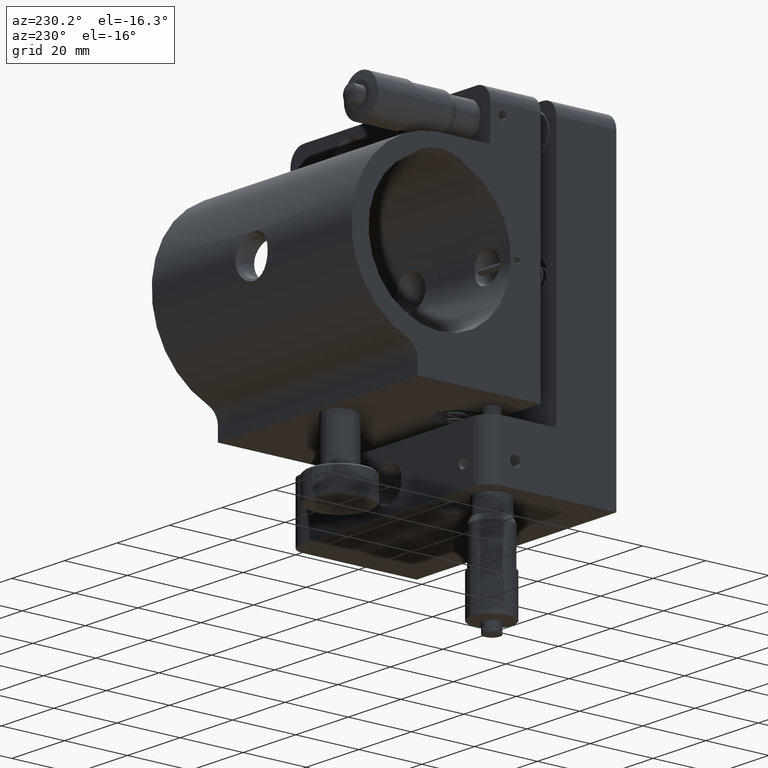
[diagram: clean part render]
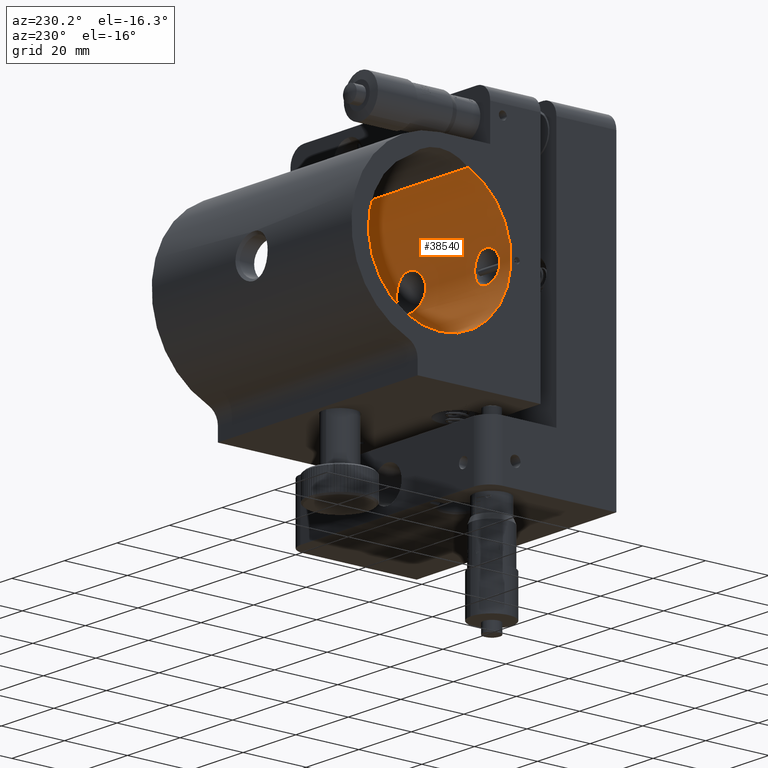
[diagram: same view with one face highlighted and labeled with its STEP entity id]
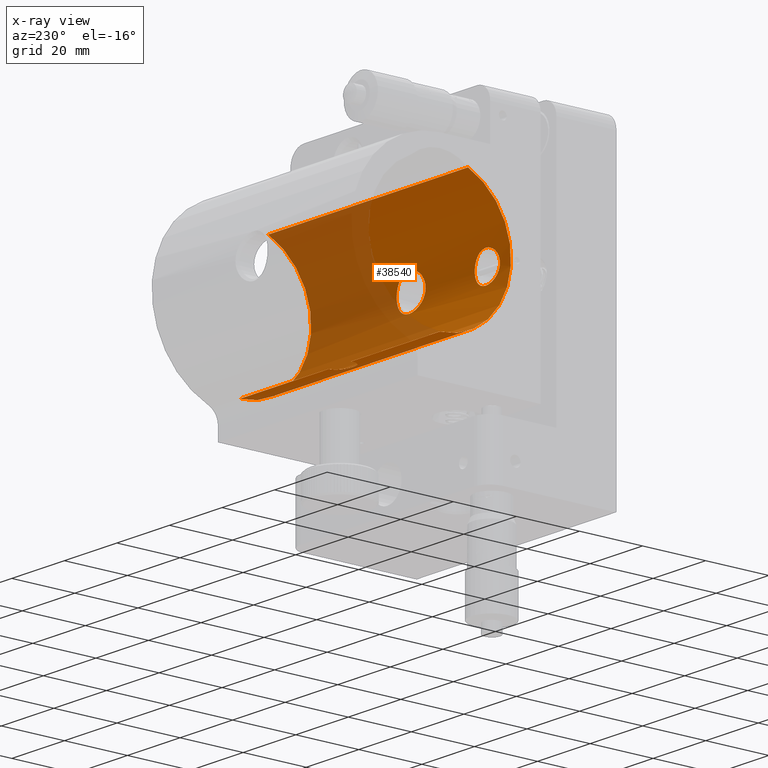
[diagram: x-ray of the same camera — body ghosted, the highlighted face saturated]
A machine part, auxiliary view. The second image highlights one B-rep face of the part: STEP entity #38540.
The next image is the same camera in x-ray: the body ghosted, the highlighted face saturated — about 45% of this face is hidden behind the body in this view.
In plain terms, the highlighted cylindrical surface (partial cylindrical patch) has radius 22.6 mm, axis along (1, -0, -0).
Its self-contained STEP definition (entity closure, byte-faithful):
#232 = CARTESIAN_POINT ( 'NONE',  ( -28.99999999999999300, 33.91561637717708100, 4.799999999999896800 ) ) ;
#279 = CARTESIAN_POINT ( 'NONE',  ( -5.322882374850980400, 33.44255374797697300, 1.430629238801954100 ) ) ;
#431 = EDGE_CURVE ( 'NONE', #86210, #9210, #53768, .T. ) ;
#865 = CARTESIAN_POINT ( 'NONE',  ( -0.1798737963193269800, 34.07946168544193500, 5.499999999999966200 ) ) ;
#1552 = CARTESIAN_POINT ( 'NONE',  ( -31.92919109519753500, 33.72369511221305100, 3.815414028245748900 ) ) ;
#1587 = CARTESIAN_POINT ( 'NONE',  ( -27.44411171378724400, 33.86274486963220900, -4.551586978275326000 ) ) ;
#1838 = CARTESIAN_POINT ( 'NONE',  ( -33.31321153355015200, 33.49867152778696100, 2.129684487732626000 ) ) ;
#2163 = CARTESIAN_POINT ( 'NONE',  ( -4.249999999999982200, 55.99999999999979400, -22.60000000000009700 ) ) ;
#2465 = DIRECTION ( 'NONE',  ( 1.000000000000000000, -0.0000000000000000000, -0.0000000000000000000 ) ) ;
#2532 = CARTESIAN_POINT ( 'NONE',  ( 1.104592796562014400, 51.88647318228841200, -22.22255613242803200 ) ) ;
#2593 = CARTESIAN_POINT ( 'NONE',  ( -4.222098093493668700, 55.43989091721324800, -22.59470610372353100 ) ) ;
#2595 = EDGE_CURVE ( 'NONE', #72231, #18963, #22529, .T. ) ;
#2642 = CARTESIAN_POINT ( 'NONE',  ( 5.324354730952443900, 33.44220509470590500, -1.425080019547763300 ) ) ;
#2877 = CARTESIAN_POINT ( 'NONE',  ( -1.884278467364153100, 52.18040221675740000, -22.27515127614113100 ) ) ;
#3531 = DIRECTION ( 'NONE',  ( 0.0000000000000000000, 0.0000000000000000000, -1.000000000000000000 ) ) ;
#3589 = VERTEX_POINT ( 'NONE', #55548 ) ;
#3724 = CARTESIAN_POINT ( 'NONE',  ( 4.250000000000007100, 55.71927081535427100, -22.60000000000009700 ) ) ;
#3835 = CARTESIAN_POINT ( 'NONE',  ( 0.3596502502633381300, 34.07946168544194200, 5.499999999999969800 ) ) ;
#3957 = FACE_BOUND ( 'NONE', #74095, .T. ) ;
#4441 = CARTESIAN_POINT ( 'NONE',  ( 1.433238186481377900, 34.03550947224599100, -5.322263253770183900 ) ) ;
#4722 = AXIS2_PLACEMENT_3D ( 'NONE', #37195, #2465, #15215 ) ;
#6087 = CARTESIAN_POINT ( 'NONE',  ( -0.7233781988226070100, 34.07035398560775300, -5.464052063005926400 ) ) ;
#6166 = EDGE_CURVE ( 'NONE', #88858, #3589, #9141, .T. ) ;
#6376 = CARTESIAN_POINT ( 'NONE',  ( -30.24966693500653000, 33.88243696766461000, 4.645146430204468900 ) ) ;
#7047 = CARTESIAN_POINT ( 'NONE',  ( -28.99999999999999300, 33.91561637717708100, 4.799999999999896800 ) ) ;
#7252 = CARTESIAN_POINT ( 'NONE',  ( -5.464650970036623300, 33.40868142954541000, -0.7203364882578163800 ) ) ;
#7545 = CARTESIAN_POINT ( 'NONE',  ( -5.010706080715062100, 33.51416842081005100, 2.274969557391435200 ) ) ;
#7914 = CARTESIAN_POINT ( 'NONE',  ( -31.40708959395107400, 33.78632925392198400, -4.164630580334018000 ) ) ;
#8220 = CARTESIAN_POINT ( 'NONE',  ( -33.31335647795426500, 33.49863911256517900, -2.128998027626310700 ) ) ;
#8559 = CARTESIAN_POINT ( 'NONE',  ( -26.06617915821696500, 33.72311972746749100, -3.812153637246024700 ) ) ;
#8845 = CARTESIAN_POINT ( 'NONE',  ( -33.76922313484902100, 33.40659747744870600, -0.6280597576129802700 ) ) ;
#9141 = B_SPLINE_CURVE_WITH_KNOTS ( 'NONE', 3,
 ( #47840, #89323, #6087, #12201, #68049, #75049, #40230, #20670, #22799, #64532, #34786, #28703, #34660, #14260, #69809, #62769, #56346, #27687, #21858, #7252, #42627, #28883, #55421, #279, #20956, #7545, #63673, #76824, #90208, #70712, #56047, #42033, #77722, #63056, #27975, #13660, #21260, #35869, #49017, #41412, #865, #90511 ),
 .UNSPECIFIED., .F., .F.,
 ( 4, 2, 2, 2, 2, 2, 2, 2, 2, 2, 2, 2, 2, 2, 2, 2, 2, 2, 2, 2, 4 ),
 ( 2.770795377300459800E-021, 0.001078774722834775800, 0.001618162084252163400, 0.002157549445669551500, 0.003236324168504329000, 0.004315098891339106500, 0.005393873614173885800, 0.006472648337008665900, 0.007012035698426053800, 0.007551423059843442500, 0.008630197782678220000, 0.009708972505512999300, 0.01078774722834777800, 0.01132713458976517000, 0.01186652195118255900, 0.01294529667401734000, 0.01402407139685212100, 0.01510284611968690200, 0.01618162084252168500, 0.01672100820393907600, 0.01726039556535646400 ),
 .UNSPECIFIED. ) ;
#9210 = VERTEX_POINT ( 'NONE', #81681 ) ;
#9794 = CARTESIAN_POINT ( 'NONE',  ( 1.371861425395285900, 51.96797637086022100, -22.23767948693794200 ) ) ;
#9858 = CARTESIAN_POINT ( 'NONE',  ( -1.105596994433070800, 51.88689408517588200, -22.22263347242475000 ) ) ;
#9895 = CARTESIAN_POINT ( 'NONE',  ( 37.99999999999998600, 55.99999999999979400, -22.60000000000009700 ) ) ;
#9914 = CARTESIAN_POINT ( 'NONE',  ( 3.633473197002516500, 33.78177005003328800, 4.144446651324810400 ) ) ;
#10211 = CARTESIAN_POINT ( 'NONE',  ( 4.137235025438158700, 33.69273168766969200, -3.628427790745238000 ) ) ;
#10240 = DIRECTION ( 'NONE',  ( 0.0000000000000000000, 0.0000000000000000000, -1.000000000000000000 ) ) ;
#10812 = CARTESIAN_POINT ( 'NONE',  ( 1.776651829401622500, 34.01005157653808900, 5.217475679901377300 ) ) ;
#11431 = CARTESIAN_POINT ( 'NONE',  ( 7.675776399004247800E-015, 34.07946168544189900, -5.500000000000032900 ) ) ;
#12201 = CARTESIAN_POINT ( 'NONE',  ( -1.252008776984978600, 34.04444146572080100, -5.358615424136683500 ) ) ;
#12402 = CARTESIAN_POINT ( 'NONE',  ( 7.675776399004247800E-015, 34.07946168544189900, -5.500000000000032900 ) ) ;
#13161 = CARTESIAN_POINT ( 'NONE',  ( -25.38647994105122800, 33.62301049125995400, 3.174957446713635900 ) ) ;
#13386 = CARTESIAN_POINT ( 'NONE',  ( -30.55086830747993100, 33.86312075535603600, -4.553428815921313000 ) ) ;
#13660 = CARTESIAN_POINT ( 'NONE',  ( -1.775982307595658700, 34.01011844236690300, 5.217767744528132700 ) ) ;
#14260 = CARTESIAN_POINT ( 'NONE',  ( -4.771893086118613100, 33.56693918977146000, -2.758574996032945800 ) ) ;
#14358 = CARTESIAN_POINT ( 'NONE',  ( -25.82918565735039400, 33.69022196763513200, 3.617156121777849600 ) ) ;
#14901 = CARTESIAN_POINT ( 'NONE',  ( -33.16484252422775100, 33.52699180878005300, -2.407000268070673200 ) ) ;
#15205 = CARTESIAN_POINT ( 'NONE',  ( -32.17062697686307600, 33.69026409612016700, 3.617527469216521600 ) ) ;
#15215 = DIRECTION ( 'NONE',  ( 0.0000000000000000000, 0.0000000000000000000, -1.000000000000000000 ) ) ;
#15838 = CARTESIAN_POINT ( 'NONE',  ( -29.31377025830342100, 33.91561637717708100, 4.799999999999896800 ) ) ;
#16579 = CARTESIAN_POINT ( 'NONE',  ( -3.378497484337179100, 53.40679955173629200, -22.45191956368736500 ) ) ;
#16884 = CARTESIAN_POINT ( 'NONE',  ( -0.5596630748390462000, 51.77782494165359900, -22.20216918440565100 ) ) ;
#17224 = CARTESIAN_POINT ( 'NONE',  ( 3.360251403473164100, 33.82539513965870300, -4.369089189408867000 ) ) ;
#17242 = EDGE_CURVE ( 'NONE', #9210, #43821, #31256, .T. ) ;
#17256 = DIRECTION ( 'NONE',  ( 1.000000000000000000, 0.0000000000000000000, 0.0000000000000000000 ) ) ;
#17540 = CARTESIAN_POINT ( 'NONE',  ( 2.753956730648989400, 33.90770918122714800, 4.764271613702522500 ) ) ;
#17856 = CARTESIAN_POINT ( 'NONE',  ( 2.909797222453034400, 33.88767156880195600, 4.670688905450176300 ) ) ;
#18963 = VERTEX_POINT ( 'NONE', #48289 ) ;
#19244 = ORIENTED_EDGE ( 'NONE', *, *, #27662, .F. ) ;
#20238 = LINE ( 'NONE', #90074, #56228 ) ;
#20670 = CARTESIAN_POINT ( 'NONE',  ( -2.443693501332622200, 33.94615754636684100, -4.940462871096436900 ) ) ;
#20956 = CARTESIAN_POINT ( 'NONE',  ( -5.218512664545238000, 33.46725360832560600, 1.774196501933300600 ) ) ;
#21260 = CARTESIAN_POINT ( 'NONE',  ( -1.433065739744168400, 34.03551471330106900, 5.322284021705848500 ) ) ;
#21646 = CARTESIAN_POINT ( 'NONE',  ( -25.82425100140002200, 33.68951043058424200, -3.612734428317726700 ) ) ;
#21726 = ORIENTED_EDGE ( 'NONE', *, *, #66147, .F. ) ;
#21858 = CARTESIAN_POINT ( 'NONE',  ( -5.358349896053495900, 33.43408034800255300, -1.253359530072261300 ) ) ;
#21928 = CARTESIAN_POINT ( 'NONE',  ( -33.55466948909545300, 33.45114185959359800, 1.547364079828071700 ) ) ;
#21961 = CARTESIAN_POINT ( 'NONE',  ( -24.83334155462552000, 33.52664776501089200, -2.403688626288630100 ) ) ;
#22146 = B_SPLINE_CURVE_WITH_KNOTS ( 'NONE', 3,
 ( #64028, #49976, #82939, #64664, #13386, #89944, #7914, #57347, #84767, #69244, #49682, #14901, #8220, #22237, #85069, #8845, #85397, #43624, #48162, #43307, #21928, #1838, #57031, #28938, #77782, #15205, #1552, #50620, #34105, #71087, #6376, #57639, #15838, #29238 ),
 .UNSPECIFIED., .F., .F.,
 ( 4, 2, 2, 2, 2, 2, 2, 2, 2, 2, 2, 2, 2, 2, 2, 2, 4 ),
 ( 3.576224061345498000E-018, 0.0009406169165813586900, 0.001881233833162713700, 0.002821850749744068800, 0.003762467666325423900, 0.004703084582906779000, 0.005643701499488134100, 0.006584318416069489200, 0.007524935332650844300, 0.008465552249232198600, 0.009406169165813554500, 0.01034678608239491100, 0.01128740299897626500, 0.01222801991555761900, 0.01316863683213897500, 0.01410925374872033100, 0.01504987066530168500 ),
 .UNSPECIFIED. ) ;
#22237 = CARTESIAN_POINT ( 'NONE',  ( -33.55301036326257200, 33.45147230862625100, -1.551700144863713800 ) ) ;
#22529 = B_SPLINE_CURVE_WITH_KNOTS ( 'NONE', 3,
 ( #30830, #58321, #59210, #2532, #9794, #58602, #23219, #30226, #86051, #65965, #72951, #38133, #72062, #45200, #44595, #66245, #3724, #73263 ),
 .UNSPECIFIED., .F., .F.,
 ( 4, 2, 2, 2, 2, 2, 2, 2, 4 ),
 ( 0.01331708562971556200, 0.01414947221099310100, 0.01498185879227063900, 0.01581424537354817600, 0.01664663195482571400, 0.01747901853610325400, 0.01831140511738079200, 0.01914379169865832900, 0.01997617827993586700 ),
 .UNSPECIFIED. ) ;
#22799 = CARTESIAN_POINT ( 'NONE',  ( -2.759061703234011900, 33.90848429125362900, -4.771421410061900100 ) ) ;
#23219 = CARTESIAN_POINT ( 'NONE',  ( 2.131666426630760100, 52.31271721728632700, -22.29772464335797000 ) ) ;
#23934 = CARTESIAN_POINT ( 'NONE',  ( 1.432470708082989500, 34.03560394370334300, 5.322657469790005500 ) ) ;
#24237 = CARTESIAN_POINT ( 'NONE',  ( 2.445134479623779300, 33.94597046869558500, -4.939612601415400500 ) ) ;
#24537 = CARTESIAN_POINT ( 'NONE',  ( 0.7180913259285591800, 34.07060472925172000, 5.465070879490337300 ) ) ;
#26021 = CARTESIAN_POINT ( 'NONE',  ( 0.7243486358669023500, 34.07035446271667900, -5.464062307051279700 ) ) ;
#26207 = ORIENTED_EDGE ( 'NONE', *, *, #431, .T. ) ;
#27160 = CARTESIAN_POINT ( 'NONE',  ( -26.87258190049195900, 33.81525296627592800, 4.314154161100884900 ) ) ;
#27662 = EDGE_CURVE ( 'NONE', #56220, #66642, #22146, .T. ) ;
#27687 = CARTESIAN_POINT ( 'NONE',  ( -5.313749544135645500, 33.44466092436770300, -1.430593694314901100 ) ) ;
#27975 = CARTESIAN_POINT ( 'NONE',  ( -2.440007305407679600, 33.94655552045708200, 4.942223967232584900 ) ) ;
#28067 = CARTESIAN_POINT ( 'NONE',  ( -28.37389320649820600, 33.90892954087491500, 4.769550946710628700 ) ) ;
#28371 = CARTESIAN_POINT ( 'NONE',  ( -27.75167237691815500, 33.88254747563117800, 4.645675849172885600 ) ) ;
#28676 = CARTESIAN_POINT ( 'NONE',  ( -24.68611907321909300, 33.49854025719124500, -2.128113201914203100 ) ) ;
#28703 = CARTESIAN_POINT ( 'NONE',  ( -4.142548316718452900, 33.69285203434276400, -3.635513517906521200 ) ) ;
#28883 = CARTESIAN_POINT ( 'NONE',  ( -5.500145776312539400, 33.39996452346632300, 0.3580424978932043000 ) ) ;
#28938 = CARTESIAN_POINT ( 'NONE',  ( -32.81607742082670100, 33.58899228283399200, 2.928314292212718300 ) ) ;
#29238 = CARTESIAN_POINT ( 'NONE',  ( -28.99999999999999300, 33.91561637717708100, 4.799999999999896800 ) ) ;
#29270 = CARTESIAN_POINT ( 'NONE',  ( -24.23077730403924000, 33.40659574145151100, -0.6268511819877564700 ) ) ;
#30226 = CARTESIAN_POINT ( 'NONE',  ( 2.594604647767214000, 52.62241465009304200, -22.34673344797409200 ) ) ;
#30333 = CARTESIAN_POINT ( 'NONE',  ( 4.140807803085887300, 33.69318705197088100, 3.637619586613778800 ) ) ;
#30830 = CARTESIAN_POINT ( 'NONE',  ( 8.193397807220716600E-015, 51.74999999999967300, -22.19679030851089200 ) ) ;
#30941 = CARTESIAN_POINT ( 'NONE',  ( 5.217352118944912600, 33.46752558563932900, 1.777754285658795800 ) ) ;
#31234 = CARTESIAN_POINT ( 'NONE',  ( 5.428275683078829200, 33.41737377081985000, 0.9033436432466773700 ) ) ;
#31256 = CIRCLE ( 'NONE', #50889, 22.59999999999999800 ) ;
#31535 = CARTESIAN_POINT ( 'NONE',  ( 4.017199186525047600, 33.71474781930737000, -3.760846204031518700 ) ) ;
#34105 = CARTESIAN_POINT ( 'NONE',  ( -31.12894983906668900, 33.81512007052489100, 4.313484712147816100 ) ) ;
#34660 = CARTESIAN_POINT ( 'NONE',  ( -4.369743939933687900, 33.64902875061908100, -3.359469829228666000 ) ) ;
#34786 = CARTESIAN_POINT ( 'NONE',  ( -3.637358816264306700, 33.78112237389939300, -4.140928149216345700 ) ) ;
#35059 = CARTESIAN_POINT ( 'NONE',  ( -26.07018127447539200, 33.72362930485910900, 3.815071924122170900 ) ) ;
#35360 = CARTESIAN_POINT ( 'NONE',  ( -24.83685292414082500, 33.52729276663227200, 2.409522048441625800 ) ) ;
#35869 = CARTESIAN_POINT ( 'NONE',  ( -0.9019587134450245400, 34.06162577480814900, 5.428541851618517100 ) ) ;
#35967 = CARTESIAN_POINT ( 'NONE',  ( -24.19985738419934800, 33.39996970992119400, -0.3146502474105110600 ) ) ;
#36293 = CARTESIAN_POINT ( 'NONE',  ( -25.38353041859703300, 33.62252437476214300, -3.171494839732197100 ) ) ;
#37195 = CARTESIAN_POINT ( 'NONE',  ( -250.0000000000000000, 55.99999999999979400, -9.584347204771859200E-014 ) ) ;
#37605 = CARTESIAN_POINT ( 'NONE',  ( -2.592783350558748100, 52.62117699880853600, -22.34653855748134900 ) ) ;
#37888 = CARTESIAN_POINT ( 'NONE',  ( -3.818874952809689500, 54.11414084063331100, -22.52266051853227300 ) ) ;
#37941 = CARTESIAN_POINT ( 'NONE',  ( 5.464689495589696300, 33.40867004863358900, -0.7188706976372838400 ) ) ;
#38133 = CARTESIAN_POINT ( 'NONE',  ( 3.687197246230181400, 53.86838606687509700, -22.50044045357969600 ) ) ;
#38200 = CARTESIAN_POINT ( 'NONE',  ( -4.113111557162672400, 54.89449205609441400, -22.57459453200042900 ) ) ;
#38260 = CARTESIAN_POINT ( 'NONE',  ( 2.273386836776596800, 33.96250643345450000, 5.011371901853853400 ) ) ;
#38435 = B_SPLINE_CURVE_WITH_KNOTS ( 'NONE', 3,
 ( #72486, #3835, #24537, #23934, #10812, #38260, #59634, #17540, #17856, #66677, #9914, #30333, #87068, #44418, #59022, #30941, #86475, #31234, #79474, #72775, #79189, #79780, #37941, #2642, #86772, #45007, #51402, #52288, #51991, #10211, #31535, #45305, #17224, #66066, #24237, #39169, #4441, #26021, #53202, #11431 ),
 .UNSPECIFIED., .F., .F.,
 ( 4, 2, 2, 2, 2, 2, 2, 2, 2, 2, 2, 2, 2, 2, 2, 2, 2, 2, 2, 4 ),
 ( 0.01726039556535646400, 0.01833887838771401000, 0.01941736121007155800, 0.01995660262125033300, 0.02049584403242910400, 0.02157432685478665200, 0.02265280967714419800, 0.02373129249950174700, 0.02480977532185929200, 0.02534901673303806300, 0.02588825814421683700, 0.02696674096657438600, 0.02804522378893193100, 0.02912370661128947700, 0.02966294802246825100, 0.03020218943364702500, 0.03128067225600457400, 0.03235915507836212300, 0.03343763790071967200, 0.03451612072307722700 ),
 .UNSPECIFIED. ) ;
#38540 = ADVANCED_FACE ( 'NONE', ( #43230, #50833, #3957 ), #57420, .F. ) ;
#39169 = CARTESIAN_POINT ( 'NONE',  ( 1.783400140889201100, 34.00950086954082300, -5.215164351483397600 ) ) ;
#39444 = EDGE_CURVE ( 'NONE', #67986, #72231, #57819, .T. ) ;
#39847 = CARTESIAN_POINT ( 'NONE',  ( -38.00000000000000000, 55.99999999999979400, -22.60000000000009700 ) ) ;
#40230 = CARTESIAN_POINT ( 'NONE',  ( -1.944646276250845200, 33.99399556030108700, -5.147893130937003300 ) ) ;
#40907 = CARTESIAN_POINT ( 'NONE',  ( -24.68905658621791900, 33.49910839188001400, 2.134323243703999000 ) ) ;
#41203 = CARTESIAN_POINT ( 'NONE',  ( -24.20014359513927700, 33.40003049807949500, 0.3189865246972121700 ) ) ;
#41412 = CARTESIAN_POINT ( 'NONE',  ( -0.3600521534491797300, 34.07724742181013500, 5.491198131718301800 ) ) ;
#41747 = ORIENTED_EDGE ( 'NONE', *, *, #64165, .F. ) ;
#42033 = CARTESIAN_POINT ( 'NONE',  ( -3.633054479000781300, 33.78185299467220700, 4.144980950233462900 ) ) ;
#42417 = CARTESIAN_POINT ( 'NONE',  ( -28.36816170333264600, 33.90874551556404300, -4.768698447400495900 ) ) ;
#42627 = CARTESIAN_POINT ( 'NONE',  ( -5.499853317613103700, 33.40003569703810600, -0.3625072078268978800 ) ) ;
#43230 = FACE_OUTER_BOUND ( 'NONE', #50754, .T. ) ;
#43307 = CARTESIAN_POINT ( 'NONE',  ( -33.64564778359604000, 33.43235891095851300, 1.247683361304228200 ) ) ;
#43345 = CARTESIAN_POINT ( 'NONE',  ( -26.86687446443618700, 33.81470079313115900, -4.311323210976545400 ) ) ;
#43624 = CARTESIAN_POINT ( 'NONE',  ( -33.80012309013710600, 33.39997385696375400, 0.3122004264410527300 ) ) ;
#43660 = CARTESIAN_POINT ( 'NONE',  ( -27.74890780385564800, 33.88237045372560600, -4.644832917567874200 ) ) ;
#43821 = VERTEX_POINT ( 'NONE', #9895 ) ;
#44418 = CARTESIAN_POINT ( 'NONE',  ( 4.769684478464746700, 33.56738977856220900, 2.761868993401162400 ) ) ;
#44595 = CARTESIAN_POINT ( 'NONE',  ( 4.113755721127384700, 54.89711289793726900, -22.57471257954640700 ) ) ;
#44660 = CARTESIAN_POINT ( 'NONE',  ( -2.133079069945617200, 52.31368150349494100, -22.29787627368817500 ) ) ;
#45007 = CARTESIAN_POINT ( 'NONE',  ( 4.942367419139675800, 33.52959703808843300, -2.439679119221417100 ) ) ;
#45011 = DIRECTION ( 'NONE',  ( 1.000000000000000000, 0.0000000000000000000, 0.0000000000000000000 ) ) ;
#45200 = CARTESIAN_POINT ( 'NONE',  ( 4.032104222336450900, 54.62792564878216700, -22.55979270155776800 ) ) ;
#45305 = CARTESIAN_POINT ( 'NONE',  ( 3.638788000518302200, 33.78088480780384400, -4.139641987619981500 ) ) ;
#47840 = CARTESIAN_POINT ( 'NONE',  ( 7.675776399004247800E-015, 34.07946168544189900, -5.500000000000032900 ) ) ;
#47931 = DIRECTION ( 'NONE',  ( 1.000000000000000000, -0.0000000000000000000, -0.0000000000000000000 ) ) ;
#48101 = CARTESIAN_POINT ( 'NONE',  ( -38.00000000000000000, 47.01694061023731300, 20.73799999999990700 ) ) ;
#48162 = CARTESIAN_POINT ( 'NONE',  ( -33.76866678088205000, 33.40671418625324700, 0.6313273574132259900 ) ) ;
#48289 = CARTESIAN_POINT ( 'NONE',  ( 4.249999999999997300, 55.99999999999979400, -22.60000000000009700 ) ) ;
#49017 = CARTESIAN_POINT ( 'NONE',  ( -0.7210327387951265300, 34.06834864261833200, 5.455548209353076500 ) ) ;
#49425 = CARTESIAN_POINT ( 'NONE',  ( -24.35294683082202700, 33.43206845934485500, -1.242306069718629400 ) ) ;
#49682 = CARTESIAN_POINT ( 'NONE',  ( -32.81390642071525600, 33.58937604400545500, -2.931498141929336200 ) ) ;
#49976 = CARTESIAN_POINT ( 'NONE',  ( -29.31812644936291800, 33.91561637717707400, -4.800000000000087800 ) ) ;
#50620 = CARTESIAN_POINT ( 'NONE',  ( -31.41007137834746700, 33.78599443976421700, 4.162823636714533900 ) ) ;
#50754 = EDGE_LOOP ( 'NONE', ( #21726, #61373, #26207, #61872, #41747, #65963, #72648 ) ) ;
#50833 = FACE_BOUND ( 'NONE', #81756, .T. ) ;
#50889 = AXIS2_PLACEMENT_3D ( 'NONE', #51707, #45011, #3531 ) ;
#51344 = CARTESIAN_POINT ( 'NONE',  ( -4.032559819079989600, 54.62933155733939800, -22.55987521291537600 ) ) ;
#51402 = CARTESIAN_POINT ( 'NONE',  ( 4.773607872002041400, 33.56656765304087000, -2.755480825308770100 ) ) ;
#51652 = CARTESIAN_POINT ( 'NONE',  ( -1.370493275340674000, 51.96743496635577500, -22.23758329608128600 ) ) ;
#51707 = CARTESIAN_POINT ( 'NONE',  ( 37.99999999999998600, 55.99999999999979400, -9.584347204771859200E-014 ) ) ;
#51991 = CARTESIAN_POINT ( 'NONE',  ( 4.364954114247700200, 33.64937740638817600, -3.351026330674931100 ) ) ;
#52288 = CARTESIAN_POINT ( 'NONE',  ( 4.473163234147296700, 33.62792861608871700, -3.205200829003412200 ) ) ;
#53202 = CARTESIAN_POINT ( 'NONE',  ( 0.3647821834217714900, 34.07946168544189200, -5.500000000000032000 ) ) ;
#53768 = LINE ( 'NONE', #74843, #64726 ) ;
#53933 = B_SPLINE_CURVE_WITH_KNOTS ( 'NONE', 3,
 ( #7047, #76917, #28067, #28371, #55847, #27160, #62855, #35059, #14358, #13161, #77196, #35360, #40907, #89713, #76016, #83021, #41203, #35967, #29270, #49425, #57671, #28676, #21961, #71436, #36293, #21646, #8559, #84801, #43345, #1587, #43660, #42417, #63473, #71125 ),
 .UNSPECIFIED., .F., .F.,
 ( 4, 2, 2, 2, 2, 2, 2, 2, 2, 2, 2, 2, 2, 2, 2, 2, 4 ),
 ( 0.01504987066530168500, 0.01599024034901333100, 0.01693061003272497400, 0.01787097971643662000, 0.01881134940014826700, 0.01975171908385991300, 0.02069208876757155900, 0.02163245845128320500, 0.02257282813499485200, 0.02351319781870649800, 0.02445356750241814400, 0.02539393718612979100, 0.02633430686984143300, 0.02727467655355307600, 0.02821504623726472200, 0.02915541592097636900, 0.03009578560468801500 ),
 .UNSPECIFIED. ) ;
#55421 = CARTESIAN_POINT ( 'NONE',  ( -5.464015124177537400, 33.40883433920132700, 0.7240963459191460700 ) ) ;
#55548 = CARTESIAN_POINT ( 'NONE',  ( 8.346467968721894400E-015, 34.07946168544192700, 5.499999999999968000 ) ) ;
#55847 = CARTESIAN_POINT ( 'NONE',  ( -27.45044481418485600, 33.86319321911805200, 4.553758076794574400 ) ) ;
#56047 = CARTESIAN_POINT ( 'NONE',  ( -4.143000995485452100, 33.69279424151106600, 3.635312184199937000 ) ) ;
#56220 = VERTEX_POINT ( 'NONE', #85103 ) ;
#56228 = VECTOR ( 'NONE', #75492, 1000.000000000000000 ) ;
#56346 = CARTESIAN_POINT ( 'NONE',  ( -5.208603034774350600, 33.46920036543743000, -1.775665216800386100 ) ) ;
#57031 = CARTESIAN_POINT ( 'NONE',  ( -33.16325064628210100, 33.52727261855162100, 2.409318478730538600 ) ) ;
#57347 = CARTESIAN_POINT ( 'NONE',  ( -31.92819847237953500, 33.72383708994073000, -3.816265437612385900 ) ) ;
#57420 = CYLINDRICAL_SURFACE ( 'NONE', #4722, 22.59999999999999800 ) ;
#57639 = CARTESIAN_POINT ( 'NONE',  ( -29.63242926061720100, 33.90871452788304900, 4.768551775623822500 ) ) ;
#57671 = CARTESIAN_POINT ( 'NONE',  ( -24.44580645292942800, 33.45123504998603900, -1.548468787682276200 ) ) ;
#57819 = B_SPLINE_CURVE_WITH_KNOTS ( 'NONE', 3,
 ( #59280, #79137, #2593, #38200, #51344, #37888, #58375, #16579, #79429, #86423, #37605, #44660, #2877, #51652, #9858, #16884, #65715, #72723 ),
 .UNSPECIFIED., .F., .F.,
 ( 4, 2, 2, 2, 2, 2, 2, 2, 4 ),
 ( 0.006660174130079574300, 0.007492288067534073500, 0.008324402004988571900, 0.009156515942443070300, 0.009988629879897568600, 0.01082074381735206700, 0.01165285775480656500, 0.01248497169226106400, 0.01331708562971556200 ),
 .UNSPECIFIED. ) ;
#58321 = CARTESIAN_POINT ( 'NONE',  ( 0.2777323603391328400, 51.74999999999969400, -22.19679030851089900 ) ) ;
#58375 = CARTESIAN_POINT ( 'NONE',  ( -3.685983674367891500, 53.86635097336957800, -22.50024272069795500 ) ) ;
#58602 = CARTESIAN_POINT ( 'NONE',  ( 1.883583856439864600, 52.18014003238496900, -22.27510433954314800 ) ) ;
#59022 = CARTESIAN_POINT ( 'NONE',  ( 4.939177587507493300, 33.53030673681335100, 2.446568656772333900 ) ) ;
#59054 = CARTESIAN_POINT ( 'NONE',  ( -38.00000000000000000, 55.99999999999979400, -9.584347204771859200E-014 ) ) ;
#59120 = EDGE_CURVE ( 'NONE', #66642, #56220, #53933, .T. ) ;
#59210 = CARTESIAN_POINT ( 'NONE',  ( 0.5542119305636579200, 51.77695876621243100, -22.20200501478812100 ) ) ;
#59280 = CARTESIAN_POINT ( 'NONE',  ( -4.249999999999982200, 55.99999999999979400, -22.60000000000009700 ) ) ;
#59634 = CARTESIAN_POINT ( 'NONE',  ( 2.435750080970920300, 33.94511586056508200, 4.934539819118763000 ) ) ;
#59978 = ORIENTED_EDGE ( 'NONE', *, *, #73519, .F. ) ;
#61373 = ORIENTED_EDGE ( 'NONE', *, *, #61479, .F. ) ;
#61479 = EDGE_CURVE ( 'NONE', #86210, #89142, #65161, .T. ) ;
#61836 = VECTOR ( 'NONE', #81674, 1000.000000000000000 ) ;
#61872 = ORIENTED_EDGE ( 'NONE', *, *, #17242, .T. ) ;
#62660 = ORIENTED_EDGE ( 'NONE', *, *, #6166, .F. ) ;
#62769 = CARTESIAN_POINT ( 'NONE',  ( -5.147888260120184100, 33.48320012787452500, -1.944557089447569000 ) ) ;
#62855 = CARTESIAN_POINT ( 'NONE',  ( -26.59220428303336400, 33.78625799651167900, 4.164268403455394300 ) ) ;
#62886 = CARTESIAN_POINT ( 'NONE',  ( 8.193397807220716600E-015, 51.74999999999967300, -22.19679030851089200 ) ) ;
#63056 = CARTESIAN_POINT ( 'NONE',  ( -2.762185206414663700, 33.90807912973571100, 4.769520666004101600 ) ) ;
#63473 = CARTESIAN_POINT ( 'NONE',  ( -28.68195716737160700, 33.91561637717708100, -4.800000000000089500 ) ) ;
#63673 = CARTESIAN_POINT ( 'NONE',  ( -4.932631968902969200, 33.53148936661956000, 2.439573324671521900 ) ) ;
#64026 = LINE ( 'NONE', #73771, #61836 ) ;
#64028 = CARTESIAN_POINT ( 'NONE',  ( -28.99999999999998900, 33.91561637717707400, -4.800000000000088600 ) ) ;
#64165 = EDGE_CURVE ( 'NONE', #18963, #43821, #64026, .T. ) ;
#64532 = CARTESIAN_POINT ( 'NONE',  ( -3.355902199240689700, 33.82603498698522100, -4.372276773464955500 ) ) ;
#64664 = CARTESIAN_POINT ( 'NONE',  ( -30.24549703454339100, 33.88265489839434300, -4.646177786906362100 ) ) ;
#64726 = VECTOR ( 'NONE', #47931, 1000.000000000000000 ) ;
#65161 = CIRCLE ( 'NONE', #86671, 22.59999999999999800 ) ;
#65715 = CARTESIAN_POINT ( 'NONE',  ( -0.2776413905731343600, 51.74999999999968000, -22.19679030851089500 ) ) ;
#65963 = ORIENTED_EDGE ( 'NONE', *, *, #2595, .F. ) ;
#65965 = CARTESIAN_POINT ( 'NONE',  ( 3.200157221288126400, 53.18961325631573100, -22.42544939463153100 ) ) ;
#66066 = CARTESIAN_POINT ( 'NONE',  ( 2.760558968411255700, 33.90831611135527600, -4.770696387476045100 ) ) ;
#66147 = EDGE_CURVE ( 'NONE', #89142, #67986, #20238, .T. ) ;
#66245 = CARTESIAN_POINT ( 'NONE',  ( 4.222165153438693300, 55.44083320011619500, -22.59471930560179900 ) ) ;
#66642 = VERTEX_POINT ( 'NONE', #232 ) ;
#66677 = CARTESIAN_POINT ( 'NONE',  ( 3.357559388306206900, 33.82578524187440600, 4.371019773824028400 ) ) ;
#67986 = VERTEX_POINT ( 'NONE', #2163 ) ;
#68049 = CARTESIAN_POINT ( 'NONE',  ( -1.426688839024226300, 34.03376163281498600, -5.314819003931067900 ) ) ;
#69244 = CARTESIAN_POINT ( 'NONE',  ( -32.61553255339882200, 33.62267879276767200, -3.172594859017085600 ) ) ;
#69809 = CARTESIAN_POINT ( 'NONE',  ( -4.941837652112250900, 33.52971181425413500, -2.440586788332213000 ) ) ;
#70712 = CARTESIAN_POINT ( 'NONE',  ( -4.372076025877434300, 33.64855365960568200, 3.356008690950913900 ) ) ;
#71087 = CARTESIAN_POINT ( 'NONE',  ( -30.54891846339212000, 33.86325185411816800, 4.554056364710248800 ) ) ;
#71125 = CARTESIAN_POINT ( 'NONE',  ( -28.99999999999998900, 33.91561637717707400, -4.800000000000088600 ) ) ;
#71436 = CARTESIAN_POINT ( 'NONE',  ( -25.18231328034605800, 33.58872493661053900, -2.926436352141940300 ) ) ;
#72062 = CARTESIAN_POINT ( 'NONE',  ( 3.817951421818258400, 54.11222368229452700, -22.52250286573052000 ) ) ;
#72231 = VERTEX_POINT ( 'NONE', #62886 ) ;
#72486 = CARTESIAN_POINT ( 'NONE',  ( 8.346467968721894400E-015, 34.07946168544192700, 5.499999999999968000 ) ) ;
#72648 = ORIENTED_EDGE ( 'NONE', *, *, #39444, .F. ) ;
#72723 = CARTESIAN_POINT ( 'NONE',  ( 8.193397807220716600E-015, 51.74999999999967300, -22.19679030851089200 ) ) ;
#72775 = CARTESIAN_POINT ( 'NONE',  ( 5.490783331202890400, 33.40224791872413600, 0.3659706032774690000 ) ) ;
#72951 = CARTESIAN_POINT ( 'NONE',  ( 3.379377061817173500, 53.40789426014988100, -22.45205082834115000 ) ) ;
#73263 = CARTESIAN_POINT ( 'NONE',  ( 4.249999999999997300, 55.99999999999979400, -22.60000000000009700 ) ) ;
#73519 = EDGE_CURVE ( 'NONE', #3589, #88858, #38435, .T. ) ;
#73771 = CARTESIAN_POINT ( 'NONE',  ( -250.0000000000000000, 55.99999999999979400, -22.60000000000009700 ) ) ;
#74095 = EDGE_LOOP ( 'NONE', ( #62660, #59978 ) ) ;
#74843 = CARTESIAN_POINT ( 'NONE',  ( -250.0000000000000000, 47.01694061023731300, 20.73799999999990700 ) ) ;
#75049 = CARTESIAN_POINT ( 'NONE',  ( -1.772936359307576200, 34.00855870356038900, -5.209552644305295700 ) ) ;
#75492 = DIRECTION ( 'NONE',  ( 1.000000000000000000, -0.0000000000000000000, -0.0000000000000000000 ) ) ;
#76016 = CARTESIAN_POINT ( 'NONE',  ( -24.35458453327016700, 33.43240642765751900, 1.248250573659081200 ) ) ;
#76824 = CARTESIAN_POINT ( 'NONE',  ( -4.762632890526451700, 33.56819704099533700, 2.756756082276428100 ) ) ;
#76917 = CARTESIAN_POINT ( 'NONE',  ( -28.68631221344465800, 33.91561637717708800, 4.799999999999897700 ) ) ;
#77196 = CARTESIAN_POINT ( 'NONE',  ( -25.18428238063859600, 33.58905450963461400, 2.928803360837999300 ) ) ;
#77722 = CARTESIAN_POINT ( 'NONE',  ( -3.356788613730934800, 33.82588602850711400, 4.371494561440354000 ) ) ;
#77782 = CARTESIAN_POINT ( 'NONE',  ( -32.61652355258439700, 33.62254073222674600, 3.171772030041012600 ) ) ;
#79137 = CARTESIAN_POINT ( 'NONE',  ( -4.249999999999992000, 55.72216346672701100, -22.60000000000010100 ) ) ;
#79189 = CARTESIAN_POINT ( 'NONE',  ( 5.499939880395740700, 33.40001463087618600, 0.1832122078539075200 ) ) ;
#79429 = CARTESIAN_POINT ( 'NONE',  ( -3.202048900353005000, 53.19153500233422700, -22.42570517443953500 ) ) ;
#79474 = CARTESIAN_POINT ( 'NONE',  ( 5.454932684786176500, 33.41093211015245900, 0.7254967106267462600 ) ) ;
#79780 = CARTESIAN_POINT ( 'NONE',  ( 5.500119342012377300, 33.39997095659119000, -0.3609831407668244200 ) ) ;
#81674 = DIRECTION ( 'NONE',  ( 1.000000000000000000, -0.0000000000000000000, -0.0000000000000000000 ) ) ;
#81681 = CARTESIAN_POINT ( 'NONE',  ( 37.99999999999998600, 47.01694061023731300, 20.73799999999990700 ) ) ;
#81756 = EDGE_LOOP ( 'NONE', ( #19244, #86910 ) ) ;
#82939 = CARTESIAN_POINT ( 'NONE',  ( -29.63074929363070700, 33.90874525628117900, -4.768688102527035800 ) ) ;
#83021 = CARTESIAN_POINT ( 'NONE',  ( -24.23180059128260300, 33.40681252259447800, 0.6342623683304297000 ) ) ;
#84767 = CARTESIAN_POINT ( 'NONE',  ( -32.17419201702691100, 33.68973501439483400, -3.614130438043294400 ) ) ;
#84801 = CARTESIAN_POINT ( 'NONE',  ( -26.59116932132876300, 33.78616297926952700, -4.163814939108236900 ) ) ;
#85069 = CARTESIAN_POINT ( 'NONE',  ( -33.64564830248875200, 33.43235952992725400, -1.248158731370105500 ) ) ;
#85103 = CARTESIAN_POINT ( 'NONE',  ( -28.99999999999998900, 33.91561637717707400, -4.800000000000088600 ) ) ;
#85397 = CARTESIAN_POINT ( 'NONE',  ( -33.79987616821114200, 33.40002630055477800, -0.3159739808531951100 ) ) ;
#86051 = CARTESIAN_POINT ( 'NONE',  ( 2.808153510712096100, 52.79788292682570000, -22.37287421074775300 ) ) ;
#86210 = VERTEX_POINT ( 'NONE', #48101 ) ;
#86423 = CARTESIAN_POINT ( 'NONE',  ( -2.806739191257921800, 52.79643824538642600, -22.37268245647748400 ) ) ;
#86475 = CARTESIAN_POINT ( 'NONE',  ( 5.322623149543551900, 33.44261452975035100, 1.431261445417755000 ) ) ;
#86671 = AXIS2_PLACEMENT_3D ( 'NONE', #59054, #17256, #10240 ) ;
#86772 = CARTESIAN_POINT ( 'NONE',  ( 5.217703089575752400, 33.46743602925136700, -1.776120598261833800 ) ) ;
#86910 = ORIENTED_EDGE ( 'NONE', *, *, #59120, .F. ) ;
#87068 = CARTESIAN_POINT ( 'NONE',  ( 4.372010830170292000, 33.64856626473427100, 3.356088744609102100 ) ) ;
#88858 = VERTEX_POINT ( 'NONE', #12402 ) ;
#89142 = VERTEX_POINT ( 'NONE', #39847 ) ;
#89323 = CARTESIAN_POINT ( 'NONE',  ( -0.3648809147981096300, 34.07946168544190600, -5.500000000000032900 ) ) ;
#89713 = CARTESIAN_POINT ( 'NONE',  ( -24.44674892012891100, 33.45143052342609000, 1.551603502541528200 ) ) ;
#89944 = CARTESIAN_POINT ( 'NONE',  ( -31.13173711473404400, 33.81485782531159900, -4.312146027498782200 ) ) ;
#90074 = CARTESIAN_POINT ( 'NONE',  ( -250.0000000000000000, 55.99999999999979400, -22.60000000000009700 ) ) ;
#90208 = CARTESIAN_POINT ( 'NONE',  ( -4.670357428949615500, 33.58766489860953200, 2.910278726050571600 ) ) ;
#90511 = CARTESIAN_POINT ( 'NONE',  ( 8.346467968721894400E-015, 34.07946168544192700, 5.499999999999968000 ) ) ;